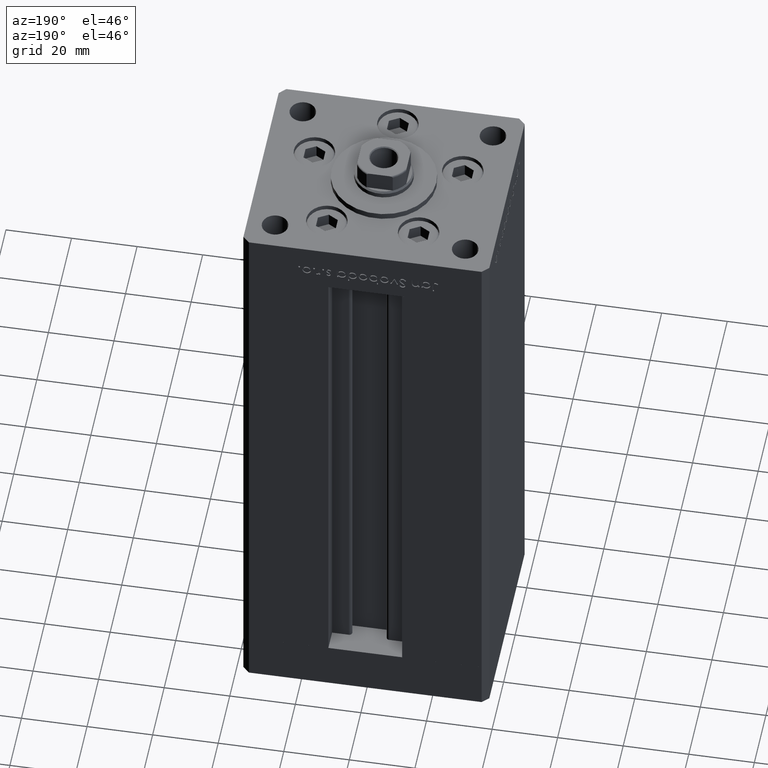
[diagram: clean part render]
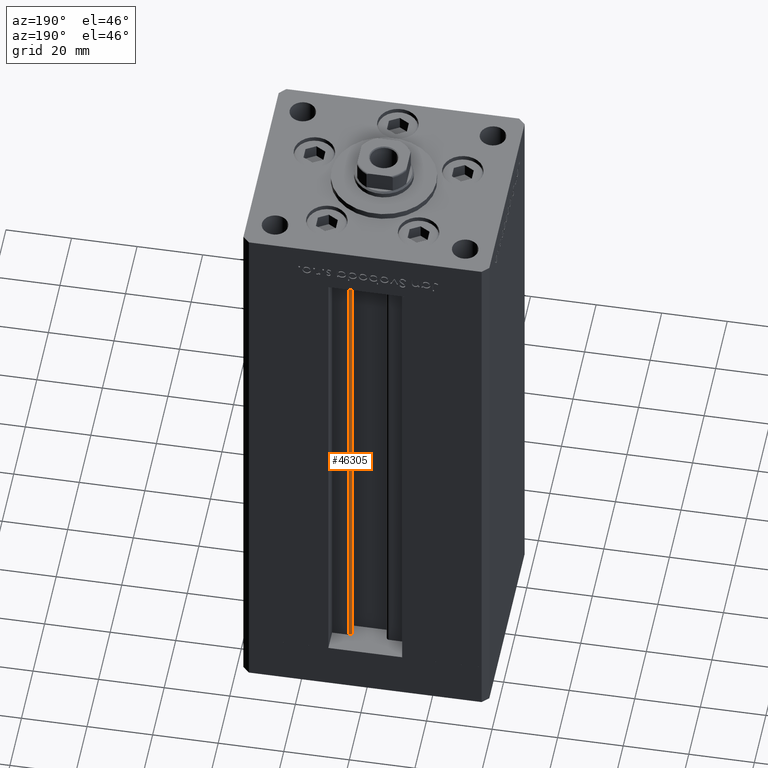
[diagram: same view with one face highlighted and labeled with its STEP entity id]
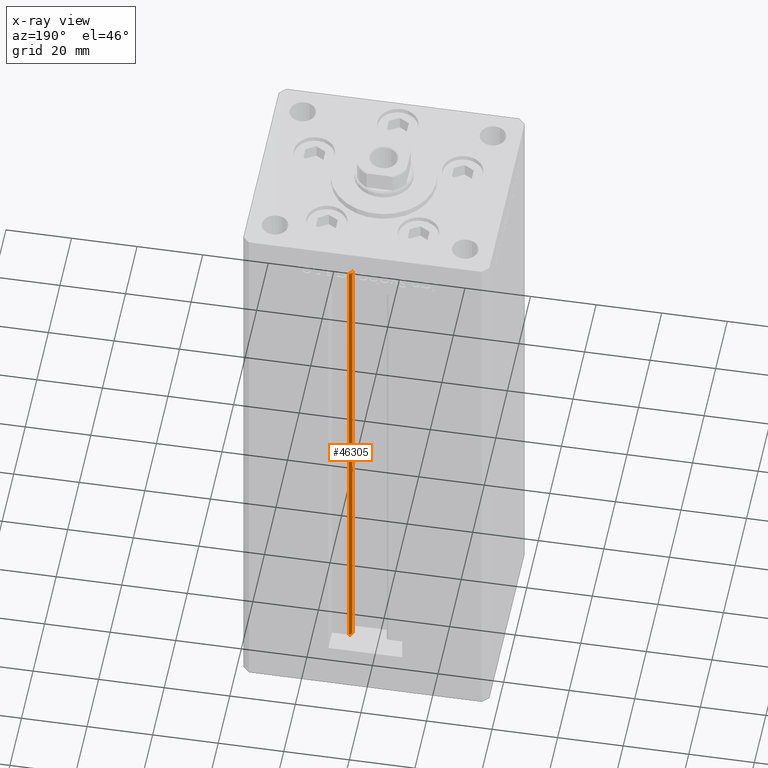
[diagram: x-ray of the same camera — body ghosted, the highlighted face saturated]
A machine part, auxiliary view. The second image highlights one B-rep face of the part: STEP entity #46305.
The next image is the same camera in x-ray: the body ghosted, the highlighted face saturated — about 0% of this face is hidden behind the body in this view.
In plain terms, the highlighted cylindrical surface (edge-blend (fillet) strip) has radius 0.9333 mm, axis along (0, 0, 1).
Its self-contained STEP definition (entity closure, byte-faithful):
#1777 = EDGE_CURVE ( 'NONE', #23650, #32654, #34106, .T. ) ;
#2887 = ORIENTED_EDGE ( 'NONE', *, *, #35194, .T. ) ;
#6702 = DIRECTION ( 'NONE',  ( -0.000000000000000000, -0.000000000000000000, -1.000000000000000000 ) ) ;
#10209 = AXIS2_PLACEMENT_3D ( 'NONE', #31236, #6702, #34692 ) ;
#13755 = CARTESIAN_POINT ( 'NONE',  ( 6.183333333334001480, 25.06666666666599141, 0.000000000000000000 ) ) ;
#14535 = DIRECTION ( 'NONE',  ( 1.000000000000000000, 0.000000000000000000, 0.000000000000000000 ) ) ;
#15054 = EDGE_CURVE ( 'NONE', #23650, #17197, #33796, .T. ) ;
#17197 = VERTEX_POINT ( 'NONE', #44612 ) ;
#18987 = EDGE_LOOP ( 'NONE', ( #46579, #49646, #43907, #2887 ) ) ;
#19387 = DIRECTION ( 'NONE',  ( 0.000000000000000000, 0.000000000000000000, -1.000000000000000000 ) ) ;
#21665 = CARTESIAN_POINT ( 'NONE',  ( 5.375042956467948052, 24.59999999999899245, 156.0000000000000000 ) ) ;
#22741 = CARTESIAN_POINT ( 'NONE',  ( 5.375042956467947164, 24.59999999999899245, 0.000000000000000000 ) ) ;
#23650 = VERTEX_POINT ( 'NONE', #42943 ) ;
#26043 = AXIS2_PLACEMENT_3D ( 'NONE', #34976, #19387, #51056 ) ;
#26663 = LINE ( 'NONE', #43005, #31960 ) ;
#31236 = CARTESIAN_POINT ( 'NONE',  ( 6.183333333334001480, 25.06666666666599141, 0.000000000000000000 ) ) ;
#31507 = VERTEX_POINT ( 'NONE', #41519 ) ;
#31960 = VECTOR ( 'NONE', #50411, 1000.000000000000000 ) ;
#32654 = VERTEX_POINT ( 'NONE', #21665 ) ;
#33796 = CIRCLE ( 'NONE', #10209, 0.9333333333340008142 ) ;
#33816 = FACE_OUTER_BOUND ( 'NONE', #18987, .T. ) ;
#34106 = LINE ( 'NONE', #22741, #43484 ) ;
#34692 = DIRECTION ( 'NONE',  ( 1.000000000000000000, 0.000000000000000000, 0.000000000000000000 ) ) ;
#34976 = CARTESIAN_POINT ( 'NONE',  ( 6.183333333334001480, 25.06666666666599141, 156.0000000000000000 ) ) ;
#35194 = EDGE_CURVE ( 'NONE', #32654, #31507, #43713, .T. ) ;
#38844 = DIRECTION ( 'NONE',  ( -0.000000000000000000, -0.000000000000000000, 1.000000000000000000 ) ) ;
#41409 = AXIS2_PLACEMENT_3D ( 'NONE', #13755, #45939, #14535 ) ;
#41519 = CARTESIAN_POINT ( 'NONE',  ( 6.183333333334001480, 25.99999999999999289, 156.0000000000000000 ) ) ;
#41602 = EDGE_CURVE ( 'NONE', #17197, #31507, #26663, .T. ) ;
#42943 = CARTESIAN_POINT ( 'NONE',  ( 5.375042956467947164, 24.59999999999899245, 0.000000000000000000 ) ) ;
#43005 = CARTESIAN_POINT ( 'NONE',  ( 6.183333333334001480, 25.99999999999999289, 0.000000000000000000 ) ) ;
#43484 = VECTOR ( 'NONE', #38844, 1000.000000000000000 ) ;
#43713 = CIRCLE ( 'NONE', #26043, 0.9333333333340008142 ) ;
#43907 = ORIENTED_EDGE ( 'NONE', *, *, #1777, .T. ) ;
#44612 = CARTESIAN_POINT ( 'NONE',  ( 6.183333333334001480, 25.99999999999999289, 0.000000000000000000 ) ) ;
#45939 = DIRECTION ( 'NONE',  ( -0.000000000000000000, -0.000000000000000000, 1.000000000000000000 ) ) ;
#46305 = ADVANCED_FACE ( 'NONE', ( #33816 ), #50674, .T. ) ;
#46579 = ORIENTED_EDGE ( 'NONE', *, *, #41602, .F. ) ;
#49646 = ORIENTED_EDGE ( 'NONE', *, *, #15054, .F. ) ;
#50411 = DIRECTION ( 'NONE',  ( -0.000000000000000000, -0.000000000000000000, 1.000000000000000000 ) ) ;
#50674 = CYLINDRICAL_SURFACE ( 'NONE', #41409, 0.9333333333340008142 ) ;
#51056 = DIRECTION ( 'NONE',  ( 1.000000000000000000, 0.000000000000000000, 0.000000000000000000 ) ) ;